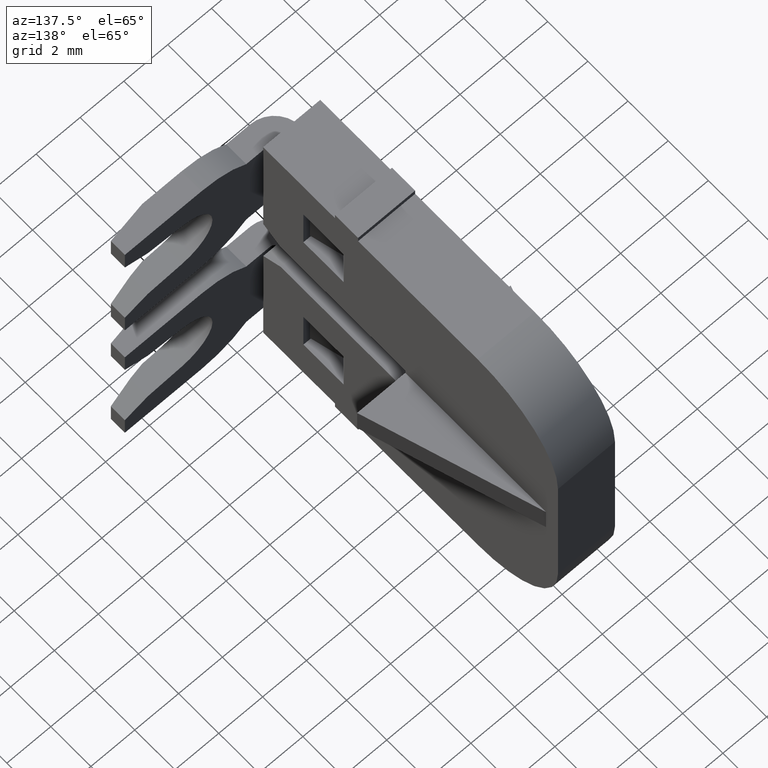
[diagram: clean part render]
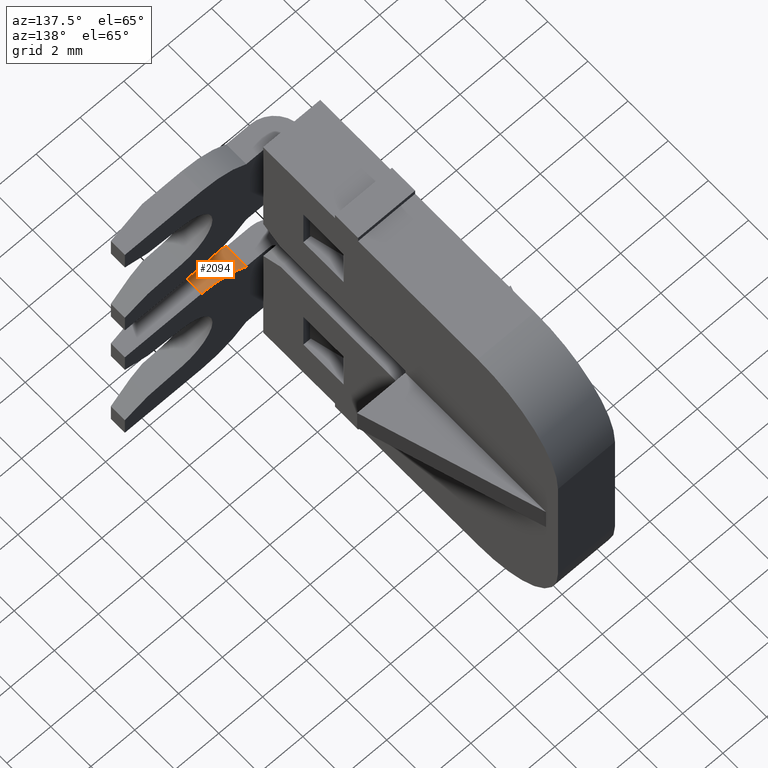
[diagram: same view with one face highlighted and labeled with its STEP entity id]
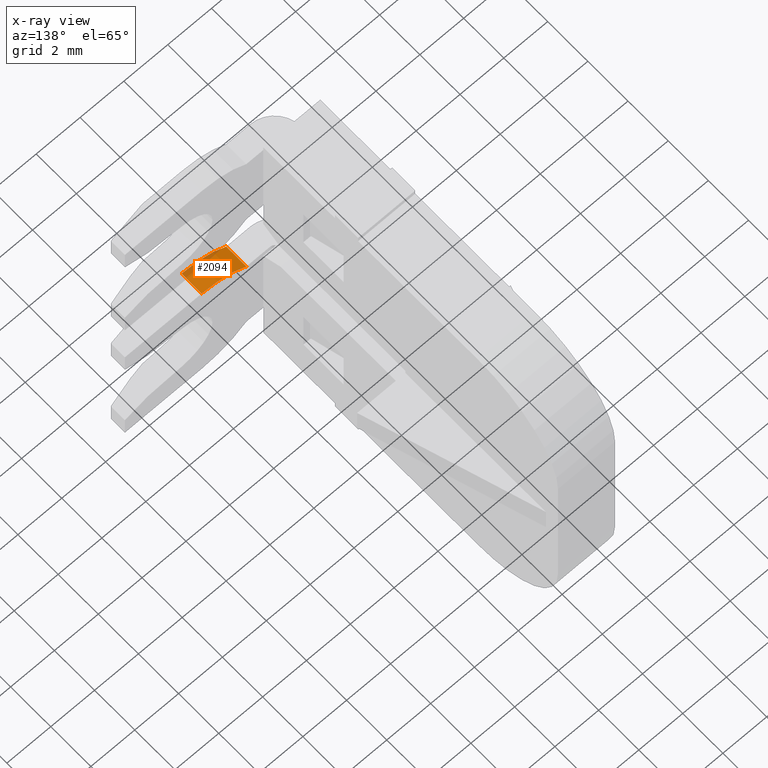
[diagram: x-ray of the same camera — body ghosted, the highlighted face saturated]
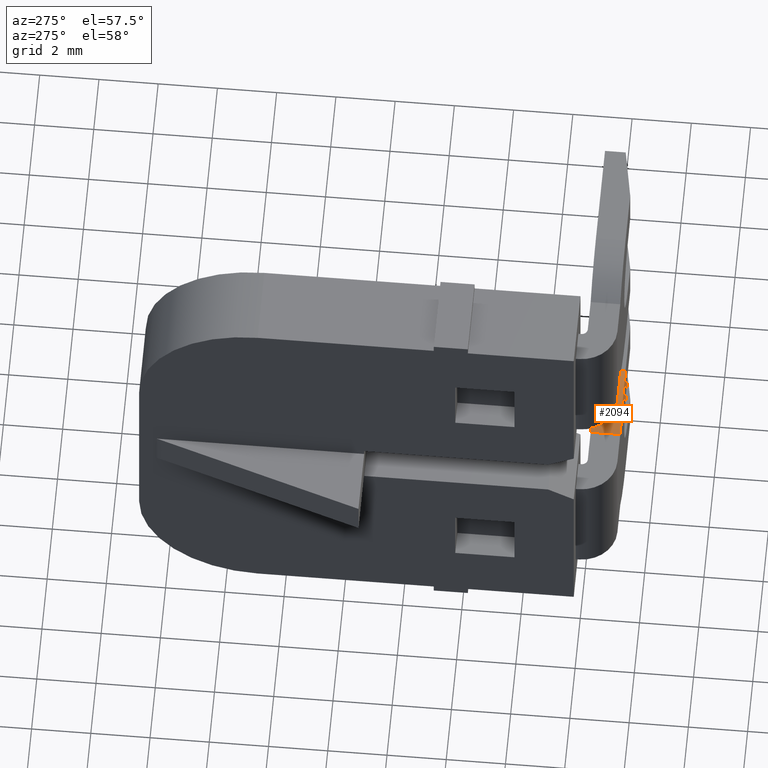
[diagram: same view with one face highlighted and labeled with its STEP entity id]
A machine part, auxiliary view. The second image highlights one B-rep face of the part: STEP entity #2094.
The next image is the same camera in x-ray: the body ghosted, the highlighted face saturated — about 15% of this face is hidden behind the body in this view.
A second angle (auxiliary view) of the same face is appended — the face is thin or edge-on in the first view.
In plain terms, the highlighted cylindrical surface (partial cylindrical patch) has radius 3 mm, axis along (-0, 1, 0).
Its self-contained STEP definition (entity closure, byte-faithful):
#222 = CARTESIAN_POINT ( 'NONE',  ( 1477.581277334164000, 1079.959529724810000, -1.099999999999976100 ) ) ;
#235 = CARTESIAN_POINT ( 'NONE',  ( 1477.581277334164000, 1078.959529724810000, -1.099999999999976100 ) ) ;
#322 = CARTESIAN_POINT ( 'NONE',  ( 1475.541669528726100, 1079.959529724810000, -1.900000000000025000 ) ) ;
#373 = CARTESIAN_POINT ( 'NONE',  ( 1475.541669528726100, 1078.959529724810000, -1.900000000000025000 ) ) ;
#464 = CIRCLE ( 'NONE', #474, 3.000000000000000000 ) ;
#474 = AXIS2_PLACEMENT_3D ( 'NONE', #1460, #1488, #1465 ) ;
#475 = VECTOR ( 'NONE', #1449, 1000.000000000000000 ) ;
#480 = CIRCLE ( 'NONE', #486, 3.000000000000000000 ) ;
#486 = AXIS2_PLACEMENT_3D ( 'NONE', #1495, #1496, #1516 ) ;
#566 = VECTOR ( 'NONE', #1755, 1000.000000000000000 ) ;
#660 = AXIS2_PLACEMENT_3D ( 'NONE', #841, #849, #879 ) ;
#841 = CARTESIAN_POINT ( 'NONE',  ( 1477.581277334164000, 1078.959529724810000, -4.100000000000000500 ) ) ;
#849 = DIRECTION ( 'NONE',  ( -5.551115123125689600E-017, 1.000000000000000000, 2.891205793293835200E-016 ) ) ;
#853 = CYLINDRICAL_SURFACE ( 'NONE', #660, 3.000000000000000000 ) ;
#879 = DIRECTION ( 'NONE',  ( 0.0000000000000000000, 0.0000000000000000000, 1.000000000000000000 ) ) ;
#883 = FACE_OUTER_BOUND ( 'NONE', #2766, .T. ) ;
#1448 = LINE ( 'NONE', #1480, #475 ) ;
#1449 = DIRECTION ( 'NONE',  ( -5.551115123125729700E-017, 1.000000000000000000, 1.887053881210179800E-016 ) ) ;
#1460 = CARTESIAN_POINT ( 'NONE',  ( 1477.581277334164000, 1079.959529724810000, -4.100000000000000500 ) ) ;
#1465 = DIRECTION ( 'NONE',  ( 0.0000000000000000000, 0.0000000000000000000, 1.000000000000000000 ) ) ;
#1480 = CARTESIAN_POINT ( 'NONE',  ( 1477.581277334164000, 1078.959529724810000, -1.099999999999976100 ) ) ;
#1488 = DIRECTION ( 'NONE',  ( 5.551115123125689600E-017, -1.000000000000000000, -2.891205793293835200E-016 ) ) ;
#1495 = CARTESIAN_POINT ( 'NONE',  ( 1477.581277334164000, 1078.959529724810000, -4.100000000000000500 ) ) ;
#1496 = DIRECTION ( 'NONE',  ( 5.551115123125689600E-017, -1.000000000000000000, -2.891205793293835200E-016 ) ) ;
#1516 = DIRECTION ( 'NONE',  ( 0.0000000000000000000, 0.0000000000000000000, 1.000000000000000000 ) ) ;
#1727 = CARTESIAN_POINT ( 'NONE',  ( 1475.541669528726100, 1078.959529724810000, -1.900000000000025000 ) ) ;
#1738 = LINE ( 'NONE', #1727, #566 ) ;
#1755 = DIRECTION ( 'NONE',  ( -5.551115123125729700E-017, 1.000000000000000000, 1.887053881210179800E-016 ) ) ;
#1943 = EDGE_CURVE ( 'NONE', #2882, #2908, #464, .T. ) ;
#1944 = EDGE_CURVE ( 'NONE', #2890, #2882, #1448, .T. ) ;
#1961 = EDGE_CURVE ( 'NONE', #2890, #2974, #480, .T. ) ;
#2030 = EDGE_CURVE ( 'NONE', #2974, #2908, #1738, .T. ) ;
#2094 = ADVANCED_FACE ( 'NONE', ( #883 ), #853, .T. ) ;
#2343 = ORIENTED_EDGE ( 'NONE', *, *, #2030, .F. ) ;
#2360 = ORIENTED_EDGE ( 'NONE', *, *, #1943, .T. ) ;
#2383 = ORIENTED_EDGE ( 'NONE', *, *, #1961, .F. ) ;
#2385 = ORIENTED_EDGE ( 'NONE', *, *, #1944, .T. ) ;
#2766 = EDGE_LOOP ( 'NONE', ( #2360, #2343, #2383, #2385 ) ) ;
#2882 = VERTEX_POINT ( 'NONE', #222 ) ;
#2890 = VERTEX_POINT ( 'NONE', #235 ) ;
#2908 = VERTEX_POINT ( 'NONE', #322 ) ;
#2974 = VERTEX_POINT ( 'NONE', #373 ) ;